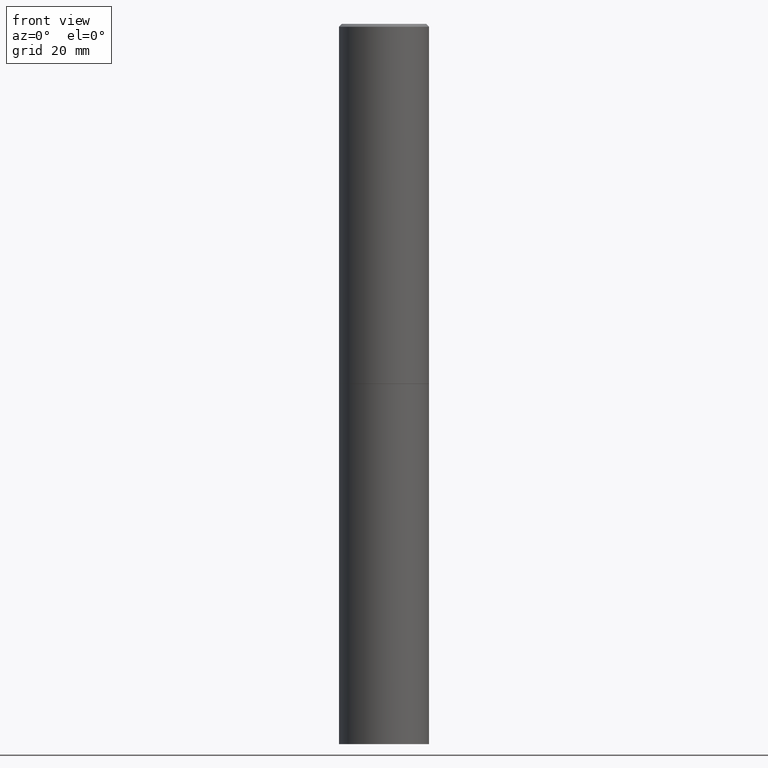
[diagram: clean part render]
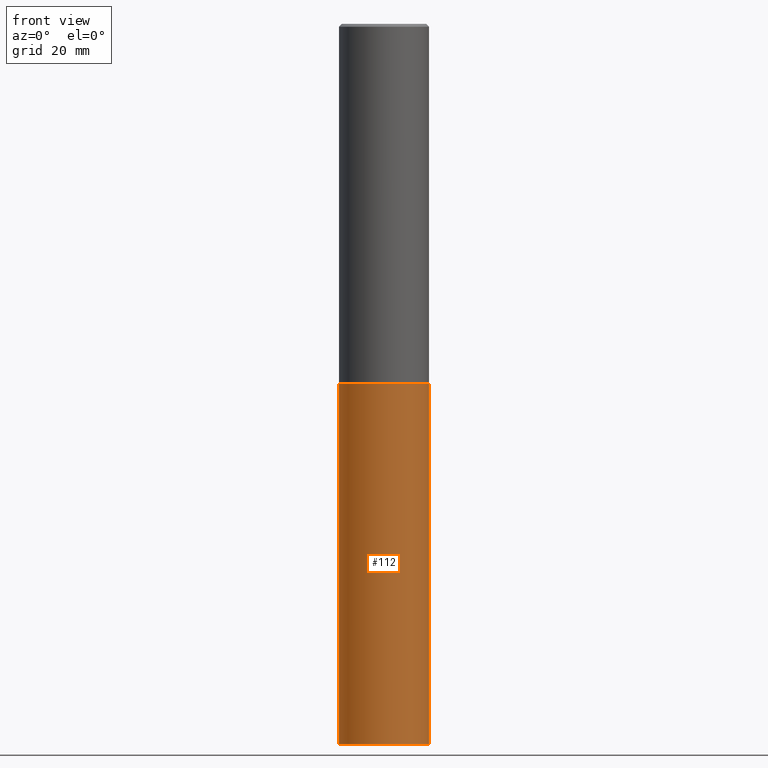
[diagram: same view with one face highlighted and labeled with its STEP entity id]
A machine part, front view. The second image highlights one B-rep face of the part: STEP entity #112.
In plain terms, the highlighted cylindrical surface (partial cylindrical patch) has radius 7.9375 mm, axis along (-0, 0, 1).
Its self-contained STEP definition (entity closure, byte-faithful):
#5 = ORIENTED_EDGE ( 'NONE', *, *, #34, .F. ) ;
#34 = EDGE_CURVE ( 'NONE', #295, #271, #305, .T. ) ;
#50 = CARTESIAN_POINT ( 'NONE',  ( -0.3125000000000000000, -1.087260897141148433E-14, -2.500000000000000000 ) ) ;
#59 = ORIENTED_EDGE ( 'NONE', *, *, #89, .T. ) ;
#73 = DIRECTION ( 'NONE',  ( -2.445468806185136877E-29, 3.491481338843145188E-15, 1.000000000000000000 ) ) ;
#89 = EDGE_CURVE ( 'NONE', #295, #264, #337, .T. ) ;
#102 = LINE ( 'NONE', #327, #364 ) ;
#106 = EDGE_CURVE ( 'NONE', #264, #240, #102, .T. ) ;
#112 = ADVANCED_FACE ( 'NONE', ( #300 ), #302, .T. ) ;
#123 = AXIS2_PLACEMENT_3D ( 'NONE', #159, #353, #326 ) ;
#147 = CARTESIAN_POINT ( 'NONE',  ( 0.3125000000000000000, -1.963958253099268981E-14, -5.000000000000000000 ) ) ;
#148 = ORIENTED_EDGE ( 'NONE', *, *, #106, .T. ) ;
#154 = ORIENTED_EDGE ( 'NONE', *, *, #356, .F. ) ;
#159 = CARTESIAN_POINT ( 'NONE',  ( 1.222734403092568523E-28, -1.745740669421572989E-14, -5.000000000000000000 ) ) ;
#166 = DIRECTION ( 'NONE',  ( 1.000000000000000000, -6.982962677686266711E-15, 4.876176775795936353E-29 ) ) ;
#173 = CARTESIAN_POINT ( 'NONE',  ( -0.3125000000000000000, -1.087260897141148433E-14, -5.000000000000000000 ) ) ;
#182 = EDGE_LOOP ( 'NONE', ( #5, #59, #148, #154 ) ) ;
#188 = DIRECTION ( 'NONE',  ( -2.445468806185136877E-29, 3.491481338843145188E-15, 1.000000000000000000 ) ) ;
#240 = VERTEX_POINT ( 'NONE', #283 ) ;
#247 = CARTESIAN_POINT ( 'NONE',  ( 0.000000000000000000, 0.000000000000000000, 0.000000000000000000 ) ) ;
#264 = VERTEX_POINT ( 'NONE', #147 ) ;
#271 = VERTEX_POINT ( 'NONE', #50 ) ;
#279 = CARTESIAN_POINT ( 'NONE',  ( 6.113672015462842613E-29, -8.728703347107864943E-15, -2.500000000000000000 ) ) ;
#283 = CARTESIAN_POINT ( 'NONE',  ( 0.3125000000000000000, -1.091087918388482329E-14, -2.500000000000000000 ) ) ;
#291 = AXIS2_PLACEMENT_3D ( 'NONE', #279, #334, #363 ) ;
#292 = CIRCLE ( 'NONE', #291, 0.3125000000000000000 ) ;
#295 = VERTEX_POINT ( 'NONE', #173 ) ;
#300 = FACE_OUTER_BOUND ( 'NONE', #182, .T. ) ;
#302 = CYLINDRICAL_SURFACE ( 'NONE', #314, 0.3125000000000000000 ) ;
#305 = LINE ( 'NONE', #329, #360 ) ;
#314 = AXIS2_PLACEMENT_3D ( 'NONE', #247, #357, #166 ) ;
#326 = DIRECTION ( 'NONE',  ( 1.000000000000000000, -6.982962677686269077E-15, 0.000000000000000000 ) ) ;
#327 = CARTESIAN_POINT ( 'NONE',  ( 0.3125000000000000000, -2.182175836776958347E-15, 1.523805242436230075E-29 ) ) ;
#329 = CARTESIAN_POINT ( 'NONE',  ( -0.3125000000000000000, 2.220446049250313081E-15, -1.537167215704658232E-29 ) ) ;
#334 = DIRECTION ( 'NONE',  ( -2.445468806185136597E-29, 3.491481338843145583E-15, 1.000000000000000000 ) ) ;
#337 = CIRCLE ( 'NONE', #123, 0.3125000000000000000 ) ;
#353 = DIRECTION ( 'NONE',  ( -2.445468806185136597E-29, 3.491481338843145583E-15, 1.000000000000000000 ) ) ;
#356 = EDGE_CURVE ( 'NONE', #271, #240, #292, .T. ) ;
#357 = DIRECTION ( 'NONE',  ( -2.445468806185136597E-29, 3.491481338843145583E-15, 1.000000000000000000 ) ) ;
#360 = VECTOR ( 'NONE', #188, 39.37007874015748143 ) ;
#363 = DIRECTION ( 'NONE',  ( 1.000000000000000000, -6.982962677686265133E-15, 0.000000000000000000 ) ) ;
#364 = VECTOR ( 'NONE', #73, 39.37007874015748143 ) ;